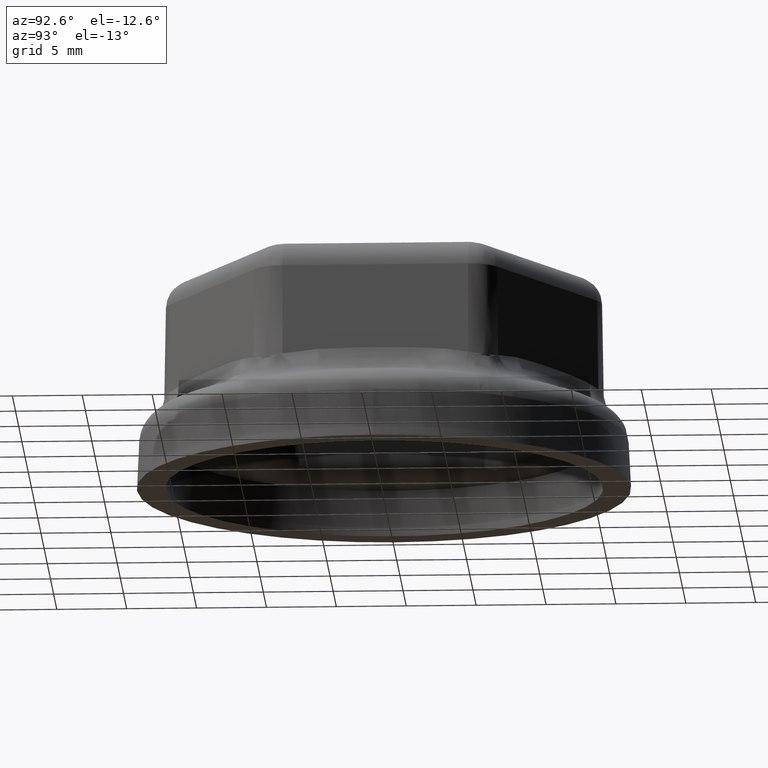
[diagram: clean part render]
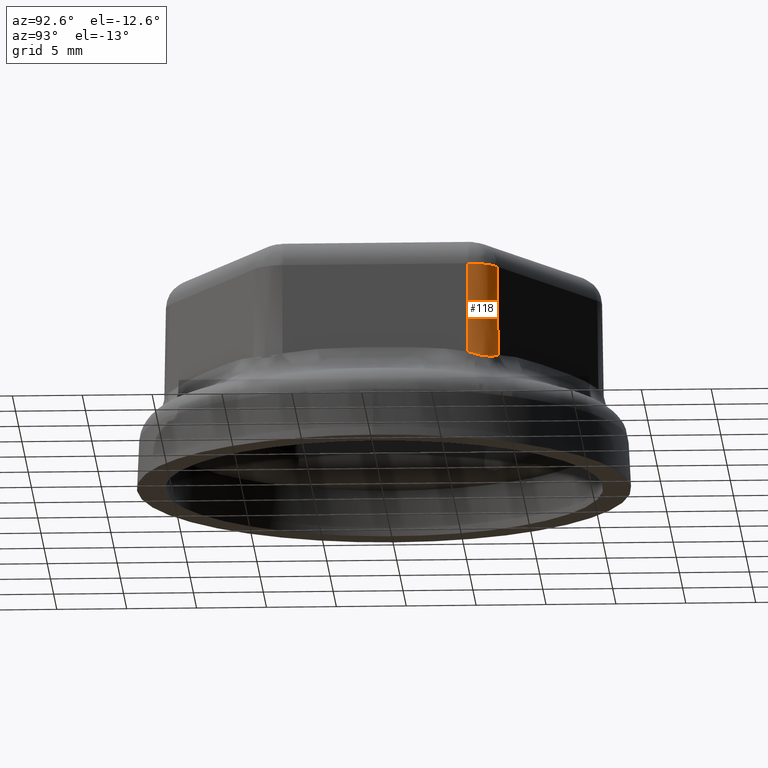
[diagram: same view with one face highlighted and labeled with its STEP entity id]
A machine part, auxiliary view. The second image highlights one B-rep face of the part: STEP entity #118.
In plain terms, the highlighted face is a freeform B-spline surface patch.
Its self-contained STEP definition (entity closure, byte-faithful):
#118 = ADVANCED_FACE( '', ( #270 ), #271, .T. );
#270 = FACE_OUTER_BOUND( '', #1450, .T. );
#271 = B_SPLINE_SURFACE_WITH_KNOTS( '', 1, 3, ( ( #1451, #1452, #1453, #1454 ), ( #1455, #1456, #1457, #1458 ) ), .UNSPECIFIED., .F., .F., .F., ( 2, 2 ), ( 4, 4 ), ( 0.000000000000000, 1.00000000000000 ), ( 3.00000000000000, 7.00000000000000 ), .UNSPECIFIED. );
#1450 = EDGE_LOOP( '', ( #4892, #4893, #4894, #4895, #4896, #4897 ) );
#1451 = CARTESIAN_POINT( '', ( 12.7500380762108, 8.80456962183123, 3.30000000000000 ) );
#1452 = CARTESIAN_POINT( '', ( 13.5163571616909, 8.36213508420318, 3.30000000000000 ) );
#1453 = CARTESIAN_POINT( '', ( 13.9999999936474, 7.52444112654871, 3.30000000000000 ) );
#1454 = CARTESIAN_POINT( '', ( 14.0000000000000, 6.63957206230192, 3.30000000000000 ) );
#1455 = CARTESIAN_POINT( '', ( 12.6243616087277, 8.58689159483460, 17.7000000000000 ) );
#1456 = CARTESIAN_POINT( '', ( 13.3136031175875, 8.18895781706338, 17.7000000000000 ) );
#1457 = CARTESIAN_POINT( '', ( 13.7486470588967, 7.43543960720600, 17.6999999999985 ) );
#1458 = CARTESIAN_POINT( '', ( 13.7486470650337, 6.63957206230192, 17.7000000000000 ) );
#4892 = ORIENTED_EDGE( '', *, *, #5384, .T. );
#4893 = ORIENTED_EDGE( '', *, *, #5385, .T. );
#4894 = ORIENTED_EDGE( '', *, *, #5373, .F. );
#4895 = ORIENTED_EDGE( '', *, *, #5386, .T. );
#4896 = ORIENTED_EDGE( '', *, *, #5387, .T. );
#4897 = ORIENTED_EDGE( '', *, *, #5388, .T. );
#5373 = EDGE_CURVE( '', #5696, #5697, #5698, .T. );
#5384 = EDGE_CURVE( '', #5715, #5716, #5717, .T. );
#5385 = EDGE_CURVE( '', #5716, #5697, #5718, .T. );
#5386 = EDGE_CURVE( '', #5696, #5719, #5720, .T. );
#5387 = EDGE_CURVE( '', #5719, #5721, #5722, .T. );
#5388 = EDGE_CURVE( '', #5721, #5715, #5723, .T. );
#5696 = VERTEX_POINT( '', #6478 );
#5697 = VERTEX_POINT( '', #6479 );
#5698 = LINE( '', #6480, #6481 );
#5715 = VERTEX_POINT( '', #6652 );
#5716 = VERTEX_POINT( '', #6653 );
#5717 = B_SPLINE_CURVE_WITH_KNOTS( '', 3, ( #6654, #6655, #6656, #6657, #6658, #6659, #6660, #6661, #6662, #6663, #6664, #6665, #6666, #6667, #6668, #6669, #6670, #6671, #6672, #6673, #6674, #6675, #6676, #6677, #6678 ), .UNSPECIFIED., .F., .F., ( 4, 2, 2, 2, 2, 2, 2, 1, 2, 2, 2, 2, 4 ), ( 8.67361737988404E-019, 9.23653386580951E-005, 0.000184730677316189, 0.000369461354632374, 0.000554192031948559, 0.000738922709264744, 0.000785105378593790, 0.000831288047922835, 0.000923653386580929, 0.00110838406389711, 0.00129311474121330, 0.00138548007987139, 0.00147784541852948 ), .UNSPECIFIED. );
#5718 = B_SPLINE_CURVE_WITH_KNOTS( '', 3, ( #6679, #6680, #6681, #6682, #6683, #6684, #6685, #6686, #6687, #6688, #6689, #6690, #6691, #6692 ), .UNSPECIFIED., .F., .F., ( 4, 1, 1, 2, 1, 1, 1, 1, 2, 4 ), ( 0.000000000000000, 0.000140723150059411, 0.000281446300118822, 0.000422169450178234, 0.000492531025207936, 0.000527711812722787, 0.000545302206480210, 0.000554097403358921, 0.000558495001798279, 0.000562892600237635 ), .UNSPECIFIED. );
#5719 = VERTEX_POINT( '', #6693 );
#5720 = B_SPLINE_CURVE_WITH_KNOTS( '', 3, ( #6694, #6695, #6696, #6697, #6698, #6699, #6700, #6701, #6702, #6703, #6704, #6705, #6706, #6707, #6708, #6709, #6710, #6711, #6712, #6713, #6714, #6715, #6716, #6717, #6718, #6719, #6720, #6721, #6722, #6723, #6724, #6725, #6726, #6727, #6728, #6729, #6730, #6731, #6732 ), .UNSPECIFIED., .F., .F., ( 4, 2, 1, 1, 1, 1, 1, 1, 1, 1, 1, 2, 2, 2, 1, 1, 1, 2, 2, 2, 1, 1, 1, 2, 2, 2, 4 ), ( -5.99999999809212E-008, 2.29931885341101E-006, 4.65863770680294E-006, 9.37727541358680E-006, 1.88145508271590E-005, 3.76891016543103E-005, 7.54382033086103E-005, 0.000150936406617210, 0.000301932813234406, 0.000452929219851602, 0.000603925626468798, 0.000754922033085993, 0.000792671134740290, 0.000830420236394588, 0.000905918439703182, 0.00105691484632038, 0.00120791125293757, 0.00135890765955476, 0.00143440586286336, 0.00150990406617196, 0.00166090047278916, 0.00181189687940636, 0.00196289328602356, 0.00211388969264076, 0.00218938789594936, 0.00226488609925796, 0.00241588250587516 ), .UNSPECIFIED. );
#5721 = VERTEX_POINT( '', #6733 );
#5722 = LINE( '', #6734, #6735 );
#5723 = B_SPLINE_CURVE_WITH_KNOTS( '', 3, ( #6736, #6737, #6738, #6739, #6740, #6741, #6742, #6743, #6744, #6745, #6746, #6747, #6748, #6749 ), .UNSPECIFIED., .F., .F., ( 4, 2, 1, 1, 1, 2, 2, 1, 4 ), ( -5.99999999896981E-008, 1.75586000713065E-005, 3.51772001426027E-005, 7.04144002851943E-005, 0.000140888800570374, 0.000281837601140732, 0.000352312001425909, 0.000422786401711087, 0.000563735202281444 ), .UNSPECIFIED. );
#6478 = CARTESIAN_POINT( '', ( 12.6624581186823, 8.65287668566691, 13.3349048128744 ) );
#6479 = CARTESIAN_POINT( '', ( 12.7190283440038, 8.75085919011936, 6.85309273665093 ) );
#6480 = CARTESIAN_POINT( '', ( 12.7500380762109, 8.80456962183118, 3.30000000000000 ) );
#6481 = VECTOR( '', #8103, 1000.00000000000 );
#6652 = CARTESIAN_POINT( '', ( 13.8802721945933, 7.17437828585356, 6.68726244664413 ) );
#6653 = CARTESIAN_POINT( '', ( 13.1533299492042, 8.43347918903237, 6.68726244664494 ) );
#6654 = CARTESIAN_POINT( '', ( 13.8802721945933, 7.17437828585356, 6.68726244664412 ) );
#6655 = CARTESIAN_POINT( '', ( 13.8735975051812, 7.20417698069095, 6.67970994579058 ) );
#6656 = CARTESIAN_POINT( '', ( 13.8663525443998, 7.23383382403093, 6.67289655403299 ) );
#6657 = CARTESIAN_POINT( '', ( 13.8507397358043, 7.29284128045659, 6.66048953586998 ) );
#6658 = CARTESIAN_POINT( '', ( 13.8423718734985, 7.32219205649429, 6.65489738579496 ) );
#6659 = CARTESIAN_POINT( '', ( 13.8156016157586, 7.40976314639216, 6.63969766869272 ) );
#6660 = CARTESIAN_POINT( '', ( 13.7955353150567, 7.46750147180598, 6.63165066514549 ) );
#6661 = CARTESIAN_POINT( '', ( 13.7509912419471, 7.58161502508753, 6.61894843570905 ) );
#6662 = CARTESIAN_POINT( '', ( 13.7265137142329, 7.63799125729667, 6.61430114909191 ) );
#6663 = CARTESIAN_POINT( '', ( 13.6730831522950, 7.74932037012189, 6.60809344917488 ) );
#6664 = CARTESIAN_POINT( '', ( 13.6441307665172, 7.80427372291201, 6.60653491595085 ) );
#6665 = CARTESIAN_POINT( '', ( 13.6050378875941, 7.87203436860843, 6.60651866939072 ) );
#6666 = CARTESIAN_POINT( '', ( 13.5970638434898, 7.88555607330266, 6.60661316885490 ) );
#6667 = CARTESIAN_POINT( '', ( 13.5809061310107, 7.91236614387927, 6.60699714026861 ) );
#6668 = CARTESIAN_POINT( '', ( 13.5563348770720, 7.95226836074468, 6.60786512494967 ) );
#6669 = CARTESIAN_POINT( '', ( 13.5307715502967, 7.99124241869200, 6.60960349918164 ) );
#6670 = CARTESIAN_POINT( '', ( 13.4783483010842, 8.06797241172438, 6.61425251248927 ) );
#6671 = CARTESIAN_POINT( '', ( 13.4416719974233, 8.11750429876057, 6.61890353483433 ) );
#6672 = CARTESIAN_POINT( '', ( 13.3649639278833, 8.21336017771243, 6.63162002759209 ) );
#6673 = CARTESIAN_POINT( '', ( 13.3249310809338, 8.25968443030045, 6.63967772164420 ) );
#6674 = CARTESIAN_POINT( '', ( 13.2624159240190, 8.32672340618138, 6.65489051119052 ) );
#6675 = CARTESIAN_POINT( '', ( 13.2411663995447, 8.34866111721214, 6.66048650401869 ) );
#6676 = CARTESIAN_POINT( '', ( 13.1978545543841, 8.39170225555458, 6.67289811270799 ) );
#6677 = CARTESIAN_POINT( '', ( 13.1757920907478, 8.41280577880731, 6.67971227868497 ) );
#6678 = CARTESIAN_POINT( '', ( 13.1533299492042, 8.43347918903237, 6.68726244664494 ) );
#6679 = CARTESIAN_POINT( '', ( 13.1533299492042, 8.43347918903237, 6.68726244664494 ) );
#6680 = CARTESIAN_POINT( '', ( 13.1195716954487, 8.46454916635473, 6.69860956087247 ) );
#6681 = CARTESIAN_POINT( '', ( 13.0508507552476, 8.52423551996726, 6.72284547474615 ) );
#6682 = CARTESIAN_POINT( '', ( 12.9441658683958, 8.60678326628495, 6.76312470230520 ) );
#6683 = CARTESIAN_POINT( '', ( 12.8706020234789, 8.65734262176302, 6.79214577024986 ) );
#6684 = CARTESIAN_POINT( '', ( 12.8144831557133, 8.69362987733843, 6.81455812576418 ) );
#6685 = CARTESIAN_POINT( '', ( 12.7861869692236, 8.71136508798640, 6.82592594364707 ) );
#6686 = CARTESIAN_POINT( '', ( 12.7527509216375, 8.73134764209681, 6.83943447785820 ) );
#6687 = CARTESIAN_POINT( '', ( 12.7359255355829, 8.74116229817475, 6.84624560932368 ) );
#6688 = CARTESIAN_POINT( '', ( 12.7274858198691, 8.74602552746584, 6.84966480604556 ) );
#6689 = CARTESIAN_POINT( '', ( 12.7238629881135, 8.74810032414173, 6.85113303408660 ) );
#6690 = CARTESIAN_POINT( '', ( 12.7214464733904, 8.74948142370145, 6.85211248089133 ) );
#6691 = CARTESIAN_POINT( '', ( 12.7202299037253, 8.75017526947664, 6.85260562981566 ) );
#6692 = CARTESIAN_POINT( '', ( 12.7190283440281, 8.75085919016160, 6.85309273385997 ) );
#6693 = CARTESIAN_POINT( '', ( 13.8248400849428, 6.63957206104442, 13.3349048128744 ) );
#6694 = CARTESIAN_POINT( '', ( 12.6624581186822, 8.65287668566696, 13.3349048128744 ) );
#6695 = CARTESIAN_POINT( '', ( 12.6631391953653, 8.65248346585020, 13.3349048130523 ) );
#6696 = CARTESIAN_POINT( '', ( 12.6638403023591, 8.65207819306334, 13.3349048126958 ) );
#6697 = CARTESIAN_POINT( '', ( 12.6652224615369, 8.65127824755153, 13.3349048119822 ) );
#6698 = CARTESIAN_POINT( '', ( 12.6672948707635, 8.65007734148513, 13.3349048103776 ) );
#6699 = CARTESIAN_POINT( '', ( 12.6721246892926, 8.64726831724074, 13.3349048029082 ) );
#6700 = CARTESIAN_POINT( '', ( 12.6817611443251, 8.64162266408522, 13.3349047731868 ) );
#6701 = CARTESIAN_POINT( '', ( 12.7009415619971, 8.63022121978545, 13.3349046555698 ) );
#6702 = CARTESIAN_POINT( '', ( 12.7389342492544, 8.60697994821743, 13.3349041953932 ) );
#6703 = CARTESIAN_POINT( '', ( 12.8134606002275, 8.55876003064999, 13.3349024386391 ) );
#6704 = CARTESIAN_POINT( '', ( 12.9158293706407, 8.48499528278807, 13.3348979165354 ) );
#6705 = CARTESIAN_POINT( '', ( 13.0322645077708, 8.38884780364133, 13.3348905235558 ) );
#6706 = CARTESIAN_POINT( '', ( 13.1423558998955, 8.28514632668744, 13.3348823894287 ) );
#6707 = CARTESIAN_POINT( '', ( 13.2115077233958, 8.21096020304402, 13.3348772263765 ) );
#6708 = CARTESIAN_POINT( '', ( 13.2533791309716, 8.16298813167045, 13.3348742865803 ) );
#6709 = CARTESIAN_POINT( '', ( 13.2616859120841, 8.15331333933796, 13.3348737128460 ) );
#6710 = CARTESIAN_POINT( '', ( 13.2781635910808, 8.13380194778658, 13.3348725984263 ) );
#6711 = CARTESIAN_POINT( '', ( 13.2863205186075, 8.12398174754305, 13.3348720587019 ) );
#6712 = CARTESIAN_POINT( '', ( 13.3105146185916, 8.09436814784769, 13.3348704998766 ) );
#6713 = CARTESIAN_POINT( '', ( 13.3578375674109, 8.03447923411499, 13.3348676199304 ) );
#6714 = CARTESIAN_POINT( '', ( 13.4314617722104, 7.93140480447072, 13.3348642180397 ) );
#6715 = CARTESIAN_POINT( '', ( 13.5115477682524, 7.80258263499683, 13.3348627896319 ) );
#6716 = CARTESIAN_POINT( '', ( 13.5594366338088, 7.71328357306436, 13.3348637075321 ) );
#6717 = CARTESIAN_POINT( '', ( 13.5932622393268, 7.64501035891283, 13.3348650689778 ) );
#6718 = CARTESIAN_POINT( '', ( 13.6041886138689, 7.62203593578668, 13.3348656342703 ) );
#6719 = CARTESIAN_POINT( '', ( 13.6253350713262, 7.57564835421809, 13.3348669745866 ) );
#6720 = CARTESIAN_POINT( '', ( 13.6355653491387, 7.55220786206952, 13.3348677508576 ) );
#6721 = CARTESIAN_POINT( '', ( 13.6649986228611, 7.48166872569534, 13.3348703476040 ) );
#6722 = CARTESIAN_POINT( '', ( 13.7010135148446, 7.38678985826877, 13.3348745342866 ) );
#6723 = CARTESIAN_POINT( '', ( 13.7455057818404, 7.24203203447259, 13.3348822239113 ) );
#6724 = CARTESIAN_POINT( '', ( 13.7804900864039, 7.09484034735605, 13.3348903634495 ) );
#6725 = CARTESIAN_POINT( '', ( 13.7974021728093, 6.99507151342026, 13.3348953357065 ) );
#6726 = CARTESIAN_POINT( '', ( 13.8076217753516, 6.91961403097725, 13.3348985796807 ) );
#6727 = CARTESIAN_POINT( '', ( 13.8106172131774, 6.89435630372719, 13.3348995798404 ) );
#6728 = CARTESIAN_POINT( '', ( 13.8157714015898, 6.84362667268695, 13.3349013628409 ) );
#6729 = CARTESIAN_POINT( '', ( 13.8179301150378, 6.81814049291292, 13.3349021456852 ) );
#6730 = CARTESIAN_POINT( '', ( 13.8231068600378, 6.74170777097533, 13.3349040777903 ) );
#6731 = CARTESIAN_POINT( '', ( 13.8248400845575, 6.69067770720045, 13.3349048128783 ) );
#6732 = CARTESIAN_POINT( '', ( 13.8248400849428, 6.63957206104442, 13.3349048128744 ) );
#6733 = CARTESIAN_POINT( '', ( 13.9379805356313, 6.63957206185668, 6.85309273404558 ) );
#6734 = CARTESIAN_POINT( '', ( 14.0000000000000, 6.63957206230192, 3.30000000000000 ) );
#6735 = VECTOR( '', #8108, 1000.00000000000 );
#6736 = CARTESIAN_POINT( '', ( 13.9379805356345, 6.63957206230192, 6.85309273386233 ) );
#6737 = CARTESIAN_POINT( '', ( 13.9380145387166, 6.64511109621821, 6.85114119338662 ) );
#6738 = CARTESIAN_POINT( '', ( 13.9380292049643, 6.65067071255581, 6.84918707658585 ) );
#6739 = CARTESIAN_POINT( '', ( 13.9380191193095, 6.66177095644763, 6.84529555769108 ) );
#6740 = CARTESIAN_POINT( '', ( 13.9379452317325, 6.67842288748111, 6.83947267986131 ) );
#6741 = CARTESIAN_POINT( '', ( 13.9373613931082, 6.71728991982976, 6.82599150156749 ) );
#6742 = CARTESIAN_POINT( '', ( 13.9345457254613, 6.79508655690243, 6.79948908085859 ) );
#6743 = CARTESIAN_POINT( '', ( 13.9292954910813, 6.86191878408401, 6.77768956101457 ) );
#6744 = CARTESIAN_POINT( '', ( 13.9221121872034, 6.92890575442299, 6.75667370573279 ) );
#6745 = CARTESIAN_POINT( '', ( 13.9193948743663, 6.95125947424906, 6.74979962742118 ) );
#6746 = CARTESIAN_POINT( '', ( 13.9133211418178, 6.99592040340043, 6.73637327779251 ) );
#6747 = CARTESIAN_POINT( '', ( 13.9032473897403, 7.06288137624752, 6.71670402868055 ) );
#6748 = CARTESIAN_POINT( '', ( 13.8902616102629, 7.12978122211560, 6.69856560484556 ) );
#6749 = CARTESIAN_POINT( '', ( 13.8802721945932, 7.17437828585351, 6.68726244664402 ) );
#8103 = DIRECTION( '', ( 0.00872620321864175, 0.0151142273318586, -0.999847695156391 ) );
#8108 = DIRECTION( '', ( 0.0174524064372835, 1.25293476575282E-010, -0.999847695156391 ) );